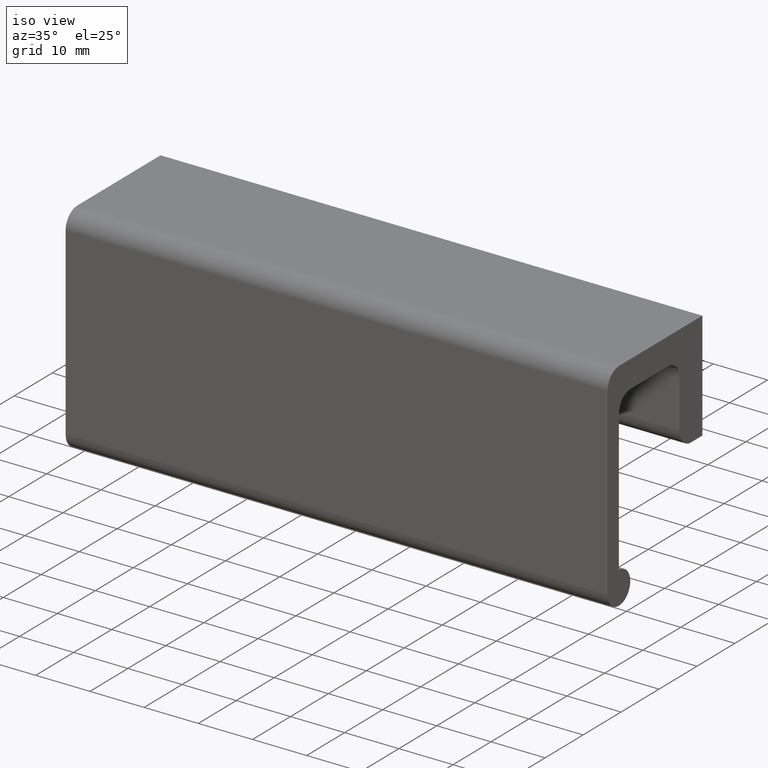
[diagram: clean part render]
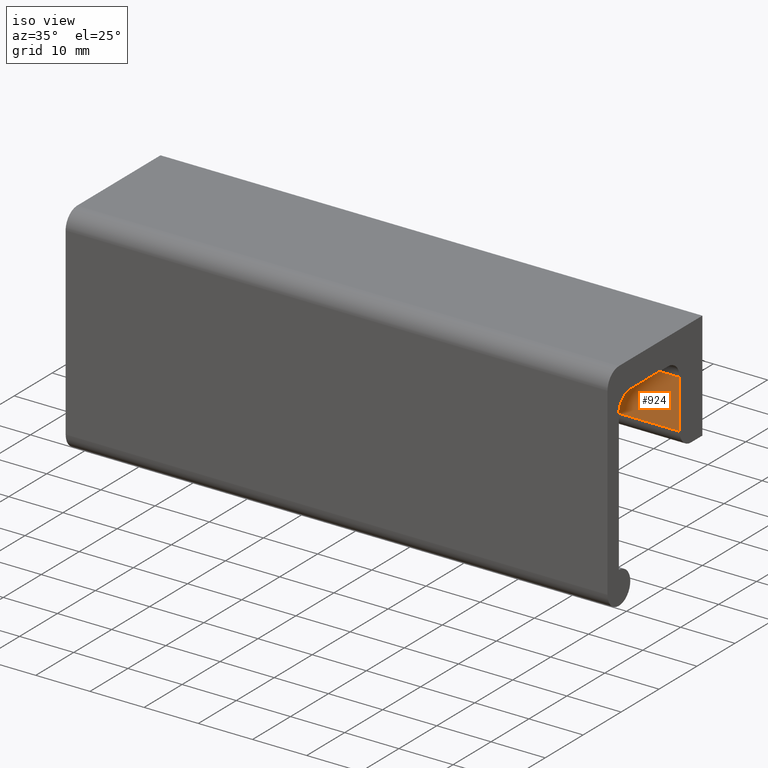
[diagram: same view with one face highlighted and labeled with its STEP entity id]
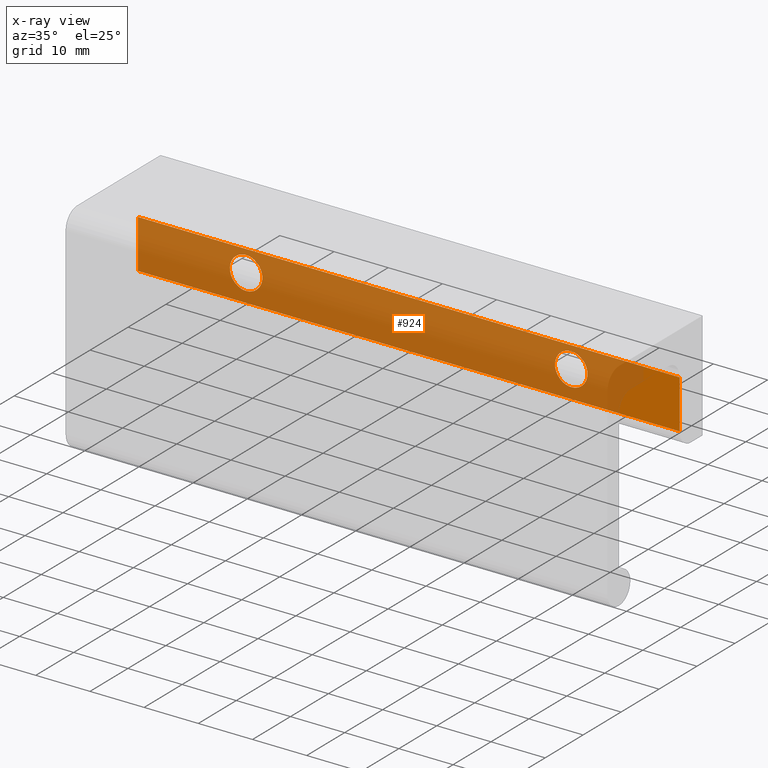
[diagram: x-ray of the same camera — body ghosted, the highlighted face saturated]
A machine part, iso view. The second image highlights one B-rep face of the part: STEP entity #924.
The next image is the same camera in x-ray: the body ghosted, the highlighted face saturated — about 91% of this face is hidden behind the body in this view.
In plain terms, the highlighted face is a freeform B-spline surface patch.
Its self-contained STEP definition (entity closure, byte-faithful):
#62=CARTESIAN_POINT('',(80.0,-6.0,-9.000000000000002));
#63=VERTEX_POINT('',#62);
#64=CARTESIAN_POINT('',(77.009247998837708,-6.0,-11.764622712345099));
#65=VERTEX_POINT('',#64);
#66=CARTESIAN_POINT('',(80.0,-6.0,-9.000000000000002));
#67=CARTESIAN_POINT('',(77.226828525902263,-6.000000000000001,-9.000000000000004));
#68=CARTESIAN_POINT('',(77.009247998837708,-6.000000000000001,-11.764622712345096));
#76=(BOUNDED_CURVE()B_SPLINE_CURVE(2,(#66,#67,#68),.UNSPECIFIED.,.F.,.U.)B_SPLINE_CURVE_WITH_KNOTS((3,3),(0.0,0.236331300578731),.UNSPECIFIED.)CURVE()GEOMETRIC_REPRESENTATION_ITEM()RATIONAL_B_SPLINE_CURVE((1.0,0.723120658668504,0.969723356059047))REPRESENTATION_ITEM(''));
#77=EDGE_CURVE('',#63,#65,#76,.T.);
#118=CARTESIAN_POINT('',(82.990752001162292,-6.0,-12.235377287654901));
#119=VERTEX_POINT('',#118);
#125=CARTESIAN_POINT('',(82.990752001162292,-6.0,-12.235377287654902));
#126=CARTESIAN_POINT('',(83.0,-6.000000000000001,-12.117870321496570));
#127=CARTESIAN_POINT('',(83.0,-6.0,-12.0));
#128=CARTESIAN_POINT('',(83.0,-6.0,-9.000000000000002));
#129=CARTESIAN_POINT('',(80.0,-6.0,-9.000000000000002));
#137=(BOUNDED_CURVE()B_SPLINE_CURVE(2,(#125,#126,#127,#128,#129),.UNSPECIFIED.,.F.,.U.)B_SPLINE_CURVE_WITH_KNOTS((3,2,3),(0.736331300578731,0.750000000000000,1.0),.UNSPECIFIED.)CURVE()GEOMETRIC_REPRESENTATION_ITEM()RATIONAL_B_SPLINE_CURVE((0.969723356059047,0.983986122518044,1.0,0.707106781186548,1.0))REPRESENTATION_ITEM(''));
#138=EDGE_CURVE('',#119,#63,#137,.T.);
#161=CARTESIAN_POINT('',(80.0,-6.0,-15.0));
#162=VERTEX_POINT('',#161);
#163=CARTESIAN_POINT('',(77.009247998837708,-6.000000000000001,-11.764622712345096));
#164=CARTESIAN_POINT('',(77.0,-6.000000000000001,-11.882129678503441));
#165=CARTESIAN_POINT('',(77.0,-6.0,-12.0));
#166=CARTESIAN_POINT('',(77.000000000000014,-6.0,-14.999999999999995));
#167=CARTESIAN_POINT('',(80.0,-6.0,-15.0));
#175=(BOUNDED_CURVE()B_SPLINE_CURVE(2,(#163,#164,#165,#166,#167),.UNSPECIFIED.,.F.,.U.)B_SPLINE_CURVE_WITH_KNOTS((3,2,3),(0.236331300578731,0.250000000000000,0.500000000000000),.UNSPECIFIED.)CURVE()GEOMETRIC_REPRESENTATION_ITEM()RATIONAL_B_SPLINE_CURVE((0.969723356059047,0.983986122518044,1.0,0.707106781186548,1.0))REPRESENTATION_ITEM(''));
#176=EDGE_CURVE('',#65,#162,#175,.T.);
#178=CARTESIAN_POINT('',(80.0,-6.0,-15.0));
#179=CARTESIAN_POINT('',(82.773171474097779,-6.0,-15.000000000000004));
#180=CARTESIAN_POINT('',(82.990752001162292,-6.0,-12.235377287654902));
#188=(BOUNDED_CURVE()B_SPLINE_CURVE(2,(#178,#179,#180),.UNSPECIFIED.,.F.,.U.)B_SPLINE_CURVE_WITH_KNOTS((3,3),(0.500000000000000,0.736331300578732),.UNSPECIFIED.)CURVE()GEOMETRIC_REPRESENTATION_ITEM()RATIONAL_B_SPLINE_CURVE((1.0,0.723120658668503,0.969723356059048))REPRESENTATION_ITEM(''));
#189=EDGE_CURVE('',#162,#119,#188,.T.);
#244=CARTESIAN_POINT('',(20.0,-6.0,-9.000000000000002));
#245=VERTEX_POINT('',#244);
#246=CARTESIAN_POINT('',(17.009247998837719,-6.000000000000001,-11.764622712345091));
#247=VERTEX_POINT('',#246);
#248=CARTESIAN_POINT('',(20.0,-6.0,-9.000000000000002));
#249=CARTESIAN_POINT('',(17.226828525902242,-6.000000000000001,-9.000000000000002));
#250=CARTESIAN_POINT('',(17.009247998837715,-6.000000000000001,-11.764622712345096));
#258=(BOUNDED_CURVE()B_SPLINE_CURVE(2,(#248,#249,#250),.UNSPECIFIED.,.F.,.U.)B_SPLINE_CURVE_WITH_KNOTS((3,3),(0.0,0.236331300578731),.UNSPECIFIED.)CURVE()GEOMETRIC_REPRESENTATION_ITEM()RATIONAL_B_SPLINE_CURVE((1.0,0.723120658668504,0.969723356059047))REPRESENTATION_ITEM(''));
#259=EDGE_CURVE('',#245,#247,#258,.T.);
#300=CARTESIAN_POINT('',(22.990752001162289,-6.0,-12.235377287654901));
#301=VERTEX_POINT('',#300);
#307=CARTESIAN_POINT('',(22.990752001162285,-6.0,-12.235377287654902));
#308=CARTESIAN_POINT('',(23.000000000000004,-6.000000000000001,-12.117870321496570));
#309=CARTESIAN_POINT('',(23.0,-6.0,-12.0));
#310=CARTESIAN_POINT('',(22.999999999999993,-6.0,-9.000000000000002));
#311=CARTESIAN_POINT('',(20.0,-6.0,-9.000000000000002));
#319=(BOUNDED_CURVE()B_SPLINE_CURVE(2,(#307,#308,#309,#310,#311),.UNSPECIFIED.,.F.,.U.)B_SPLINE_CURVE_WITH_KNOTS((3,2,3),(0.736331300578731,0.750000000000000,1.0),.UNSPECIFIED.)CURVE()GEOMETRIC_REPRESENTATION_ITEM()RATIONAL_B_SPLINE_CURVE((0.969723356059047,0.983986122518044,1.0,0.707106781186548,1.0))REPRESENTATION_ITEM(''));
#320=EDGE_CURVE('',#301,#245,#319,.T.);
#343=CARTESIAN_POINT('',(20.0,-6.0,-15.0));
#344=VERTEX_POINT('',#343);
#345=CARTESIAN_POINT('',(17.009247998837715,-6.000000000000001,-11.764622712345096));
#346=CARTESIAN_POINT('',(16.999999999999996,-5.999999999999999,-11.882129678503441));
#347=CARTESIAN_POINT('',(17.0,-6.0,-12.0));
#348=CARTESIAN_POINT('',(17.000000000000004,-6.0,-14.999999999999995));
#349=CARTESIAN_POINT('',(20.0,-6.0,-15.0));
#357=(BOUNDED_CURVE()B_SPLINE_CURVE(2,(#345,#346,#347,#348,#349),.UNSPECIFIED.,.F.,.U.)B_SPLINE_CURVE_WITH_KNOTS((3,2,3),(0.236331300578731,0.250000000000000,0.500000000000000),.UNSPECIFIED.)CURVE()GEOMETRIC_REPRESENTATION_ITEM()RATIONAL_B_SPLINE_CURVE((0.969723356059047,0.983986122518044,1.0,0.707106781186548,1.0))REPRESENTATION_ITEM(''));
#358=EDGE_CURVE('',#247,#344,#357,.T.);
#360=CARTESIAN_POINT('',(20.0,-6.0,-15.0));
#361=CARTESIAN_POINT('',(22.773171474097772,-6.0,-15.000000000000004));
#362=CARTESIAN_POINT('',(22.990752001162289,-6.0,-12.235377287654902));
#370=(BOUNDED_CURVE()B_SPLINE_CURVE(2,(#360,#361,#362),.UNSPECIFIED.,.F.,.U.)B_SPLINE_CURVE_WITH_KNOTS((3,3),(0.500000000000000,0.736331300578732),.UNSPECIFIED.)CURVE()GEOMETRIC_REPRESENTATION_ITEM()RATIONAL_B_SPLINE_CURVE((1.0,0.723120658668503,0.969723356059048))REPRESENTATION_ITEM(''));
#371=EDGE_CURVE('',#344,#301,#370,.T.);
#429=CARTESIAN_POINT('',(0.0,-6.0,-17.0));
#430=VERTEX_POINT('',#429);
#444=CARTESIAN_POINT('',(0.0,-6.0,-8.0));
#445=VERTEX_POINT('',#444);
#446=CARTESIAN_POINT('',(0.0,-6.0,-17.0));
#447=CARTESIAN_POINT('',(0.0,-6.0,-8.0));
#448=QUASI_UNIFORM_CURVE('',1,(#446,#447),.UNSPECIFIED.,.F.,.U.);
#449=EDGE_CURVE('',#430,#445,#448,.T.);
#635=CARTESIAN_POINT('',(100.0,-6.0,-8.0));
#636=VERTEX_POINT('',#635);
#650=CARTESIAN_POINT('',(100.0,-6.0,-17.0));
#651=VERTEX_POINT('',#650);
#652=CARTESIAN_POINT('',(100.0,-6.0,-17.0));
#653=CARTESIAN_POINT('',(100.0,-6.0,-8.0));
#654=QUASI_UNIFORM_CURVE('',1,(#652,#653),.UNSPECIFIED.,.F.,.U.);
#655=EDGE_CURVE('',#651,#636,#654,.T.);
#846=CARTESIAN_POINT('',(100.0,-6.0,-8.0));
#847=CARTESIAN_POINT('',(0.0,-6.0,-8.0));
#848=QUASI_UNIFORM_CURVE('',1,(#846,#847),.UNSPECIFIED.,.F.,.U.);
#849=EDGE_CURVE('',#636,#445,#848,.T.);
#877=CARTESIAN_POINT('',(100.0,-6.0,-17.0));
#878=CARTESIAN_POINT('',(0.0,-6.0,-17.0));
#879=QUASI_UNIFORM_CURVE('',1,(#877,#878),.UNSPECIFIED.,.F.,.U.);
#880=EDGE_CURVE('',#651,#430,#879,.T.);
#901=CARTESIAN_POINT('',(-4.994999806180597,-6.0,-7.550450017443746));
#902=CARTESIAN_POINT('',(-4.994999806180597,-6.0,-17.449550223955061));
#903=CARTESIAN_POINT('',(104.995002488389600,-6.0,-7.550450017443746));
#904=CARTESIAN_POINT('',(104.995002488389600,-6.0,-17.449550223955061));
#905=B_SPLINE_SURFACE_WITH_KNOTS('',1,1,((#901,#903),(#902,#904)),.UNSPECIFIED.,.F.,.F.,.U.,(2,2),(2,2),(0.0,9.899100206511315),(0.0,109.990002294570200),.UNSPECIFIED.);
#906=ORIENTED_EDGE('',*,*,#449,.F.);
#907=ORIENTED_EDGE('',*,*,#880,.F.);
#908=ORIENTED_EDGE('',*,*,#655,.T.);
#909=ORIENTED_EDGE('',*,*,#849,.T.);
#910=EDGE_LOOP('',(#906,#907,#908,#909));
#911=FACE_OUTER_BOUND('',#910,.T.);
#912=ORIENTED_EDGE('',*,*,#371,.F.);
#913=ORIENTED_EDGE('',*,*,#358,.F.);
#914=ORIENTED_EDGE('',*,*,#259,.F.);
#915=ORIENTED_EDGE('',*,*,#320,.F.);
#916=EDGE_LOOP('',(#912,#913,#914,#915));
#917=FACE_BOUND('',#916,.T.);
#918=ORIENTED_EDGE('',*,*,#189,.F.);
#919=ORIENTED_EDGE('',*,*,#176,.F.);
#920=ORIENTED_EDGE('',*,*,#77,.F.);
#921=ORIENTED_EDGE('',*,*,#138,.F.);
#922=EDGE_LOOP('',(#918,#919,#920,#921));
#923=FACE_BOUND('',#922,.T.);
#924=ADVANCED_FACE('',(#911,#917,#923),#905,.T.);